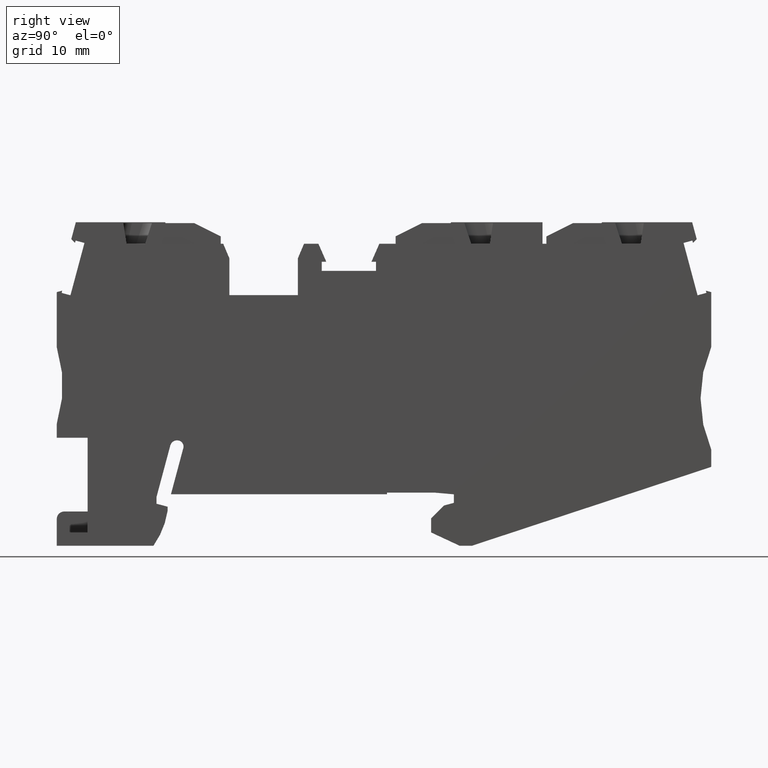
[diagram: clean part render]
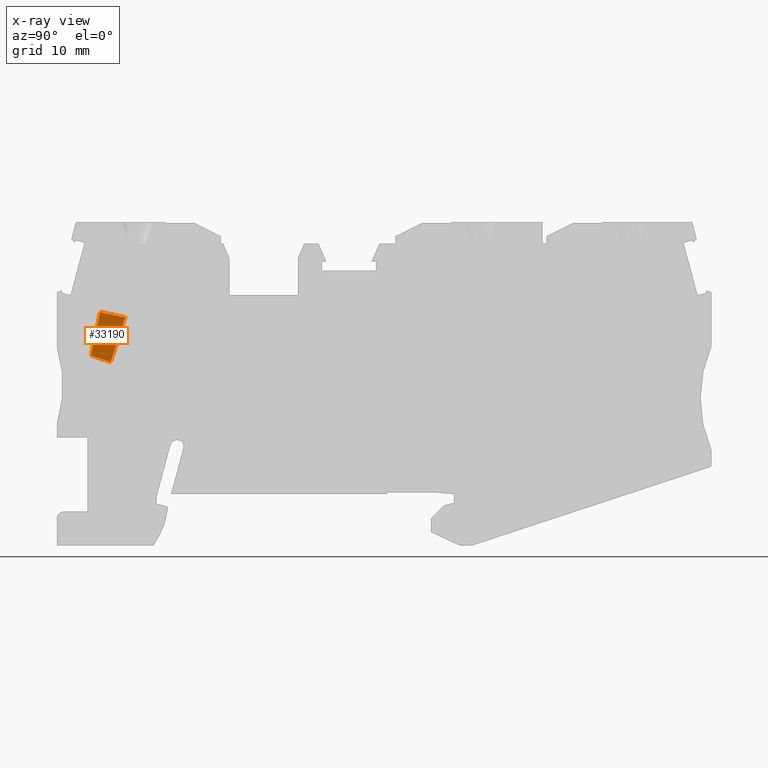
[diagram: x-ray — body ghosted, one internal face saturated and labeled with its STEP entity id]
A machine part, right view, then the same camera in x-ray: the body is ghosted and one INTERNAL B-rep face — a face not visible from any outside direction — is saturated and labeled: STEP entity #33190.
In plain terms, the highlighted planar face has unit normal (-1, -0, 0).
Its self-contained STEP definition (entity closure, byte-faithful):
#32600=CARTESIAN_POINT('',(12.4466244064518,22.1602996600442,
-2.88954846856857));
#32610=VERTEX_POINT('',#32600);
#32640=CARTESIAN_POINT('',(18.1093069076336,21.6648791360439,
-2.88954846857373));
#32650=DIRECTION('',(-0.996194698091742,0.0871557427477024,
8.86685388657767E-13));
#32660=VECTOR('',#32650,1.);
#32670=LINE('',#32640,#32660);
#32680=CARTESIAN_POINT('',(9.44602016384467,22.4228185150002,
-2.8895484685659));
#32690=VERTEX_POINT('',#32680);
#32700=EDGE_CURVE('',#32610,#32690,#32670,.T.);
#32890=CARTESIAN_POINT('',(15.2801824592159,13.7878670074451,
-2.88954846857184));
#32900=DIRECTION('',(-8.83316960602998E-13,7.72148289760988E-14,-1.));
#32910=DIRECTION('',(0.996194698092603,-0.0871557427378616,
-8.86685388657768E-13));
#32920=AXIS2_PLACEMENT_3D('',#32890,#32900,#32910);
#32930=PLANE('',#32920);
#32940=ORIENTED_EDGE('',*,*,#32700,.T.);
#32950=CARTESIAN_POINT('',(3.61378549135857,-23.2807172530283,
-2.88954846857948));
#32960=DIRECTION('',(0.190808995376498,0.981627183447674,
2.20412491898331E-13));
#32970=VECTOR('',#32960,1.);
#32980=LINE('',#32950,#32970);
#32990=CARTESIAN_POINT('',(11.3973718167009,16.7623630356733,
-2.88954846857049));
#33000=VERTEX_POINT('',#32990);
#33010=EDGE_CURVE('',#33000,#32610,#32980,.T.);
#33020=ORIENTED_EDGE('',*,*,#33010,.T.);
#33030=CARTESIAN_POINT('',(17.5753295234905,15.5614897067933,
-2.88954846857373));
#33040=DIRECTION('',(0.981627183447828,-0.190808995375701,
-8.81827377841724E-13));
#33050=VECTOR('',#33040,1.);
#33060=LINE('',#33030,#33050);
#33070=CARTESIAN_POINT('',(8.98342531229166,17.2315867034402,
-2.88954846856896));
#33080=VERTEX_POINT('',#33070);
#33090=EDGE_CURVE('',#33080,#33000,#33060,.T.);
#33100=ORIENTED_EDGE('',*,*,#33090,.T.);
#33110=CARTESIAN_POINT('',(5.13571702901599,-25.9473323326805,
-2.88954846858756));
#33120=DIRECTION('',(-0.0887590966936911,-0.996053122455887,
-4.29085393513343E-13));
#33130=VECTOR('',#33120,1.);
#33140=LINE('',#33110,#33130);
#33150=EDGE_CURVE('',#32690,#33080,#33140,.T.);
#33160=ORIENTED_EDGE('',*,*,#33150,.T.);
#33170=EDGE_LOOP('',(#33160,#33100,#33020,#32940));
#33180=FACE_OUTER_BOUND('',#33170,.T.);
#33190=ADVANCED_FACE('',(#33180),#32930,.F.);